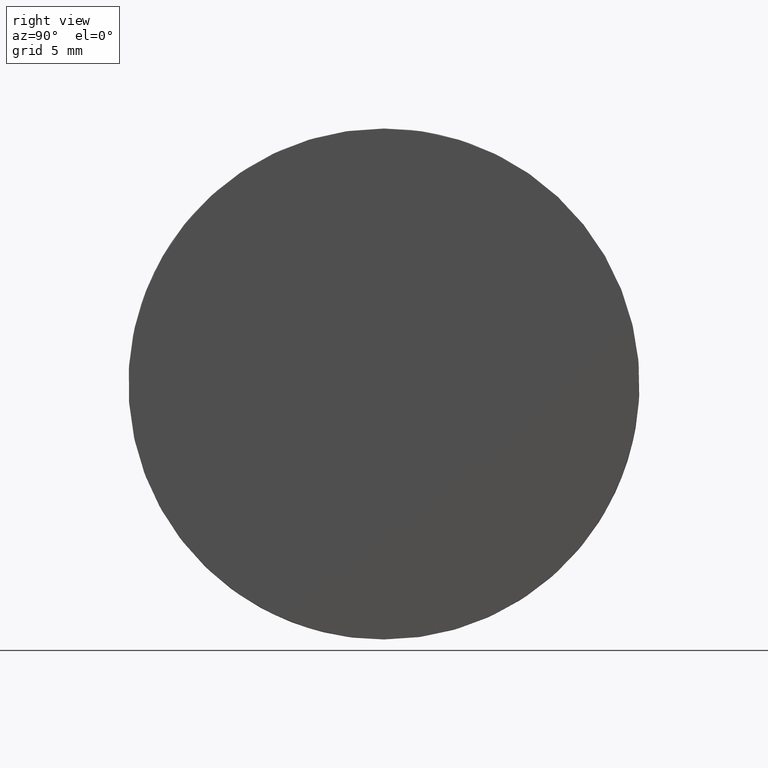
[diagram: clean part render]
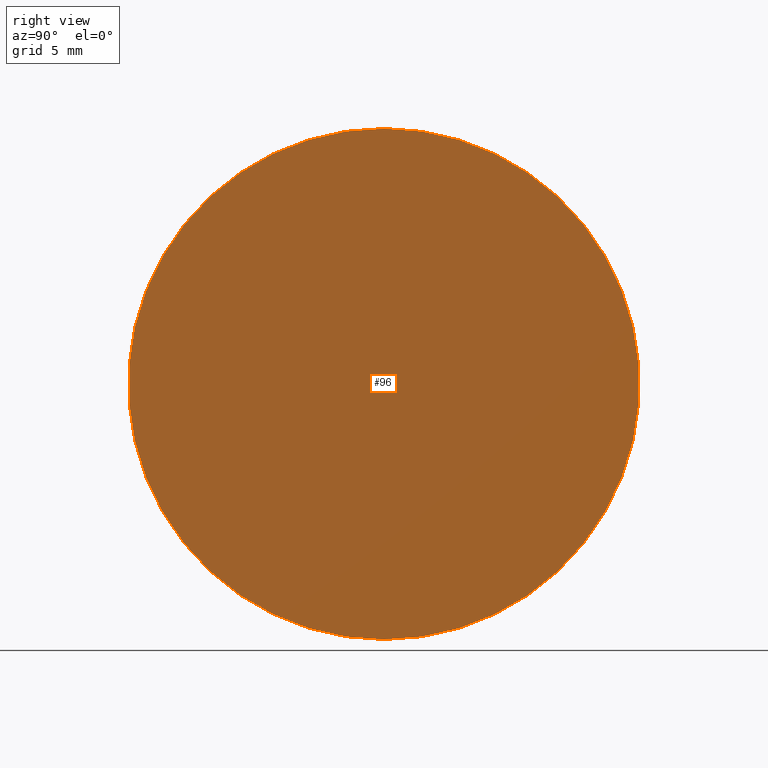
[diagram: same view with one face highlighted and labeled with its STEP entity id]
A machine part, right view. The second image highlights one B-rep face of the part: STEP entity #96.
In plain terms, the highlighted planar face has unit normal (1, 0, -0).
Its self-contained STEP definition (entity closure, byte-faithful):
#10 = AXIS2_PLACEMENT_3D ( 'NONE', #182, #155, #162 ) ;
#14 = DIRECTION ( 'NONE',  ( 1.000000000000000000, -2.465190328815661300E-032, -2.510324564891254900E-016 ) ) ;
#28 = CIRCLE ( 'NONE', #10, 12.50000000000000500 ) ;
#29 = ORIENTED_EDGE ( 'NONE', *, *, #202, .T. ) ;
#30 = CARTESIAN_POINT ( 'NONE',  ( -12.86479566514873900, 25.00000000000000000, -12.50000000000000000 ) ) ;
#34 = CARTESIAN_POINT ( 'NONE',  ( -12.86479566514873900, 12.50000000000000000, -12.50000000000000200 ) ) ;
#50 = CARTESIAN_POINT ( 'NONE',  ( -12.86479566514873500, 12.50000000000000000, 3.570698088636507300E-015 ) ) ;
#56 = CARTESIAN_POINT ( 'NONE',  ( -12.86479566514873200, 12.50000000000000200, 12.50000000000000900 ) ) ;
#58 = AXIS2_PLACEMENT_3D ( 'NONE', #50, #14, #129 ) ;
#60 = DIRECTION ( 'NONE',  ( -2.775557561562891400E-016, 0.0000000000000000000, -1.000000000000000000 ) ) ;
#80 = CIRCLE ( 'NONE', #58, 12.50000000000000500 ) ;
#86 = EDGE_LOOP ( 'NONE', ( #118, #29 ) ) ;
#92 = VERTEX_POINT ( 'NONE', #34 ) ;
#93 = PLANE ( 'NONE',  #190 ) ;
#96 = ADVANCED_FACE ( 'NONE', ( #226 ), #93, .T. ) ;
#101 = EDGE_CURVE ( 'NONE', #92, #102, #80, .T. ) ;
#102 = VERTEX_POINT ( 'NONE', #56 ) ;
#118 = ORIENTED_EDGE ( 'NONE', *, *, #101, .T. ) ;
#127 = DIRECTION ( 'NONE',  ( 1.000000000000000000, 0.0000000000000000000, -2.775557561562891400E-016 ) ) ;
#129 = DIRECTION ( 'NONE',  ( -2.775557561562890400E-016, 0.0000000000000000000, -1.000000000000000000 ) ) ;
#155 = DIRECTION ( 'NONE',  ( 1.000000000000000000, -2.465190328815661300E-032, -2.510324564891254900E-016 ) ) ;
#162 = DIRECTION ( 'NONE',  ( -2.775557561562890400E-016, 0.0000000000000000000, -1.000000000000000000 ) ) ;
#182 = CARTESIAN_POINT ( 'NONE',  ( -12.86479566514873500, 12.50000000000000000, 3.570698088636507300E-015 ) ) ;
#190 = AXIS2_PLACEMENT_3D ( 'NONE', #30, #127, #60 ) ;
#202 = EDGE_CURVE ( 'NONE', #102, #92, #28, .T. ) ;
#226 = FACE_OUTER_BOUND ( 'NONE', #86, .T. ) ;